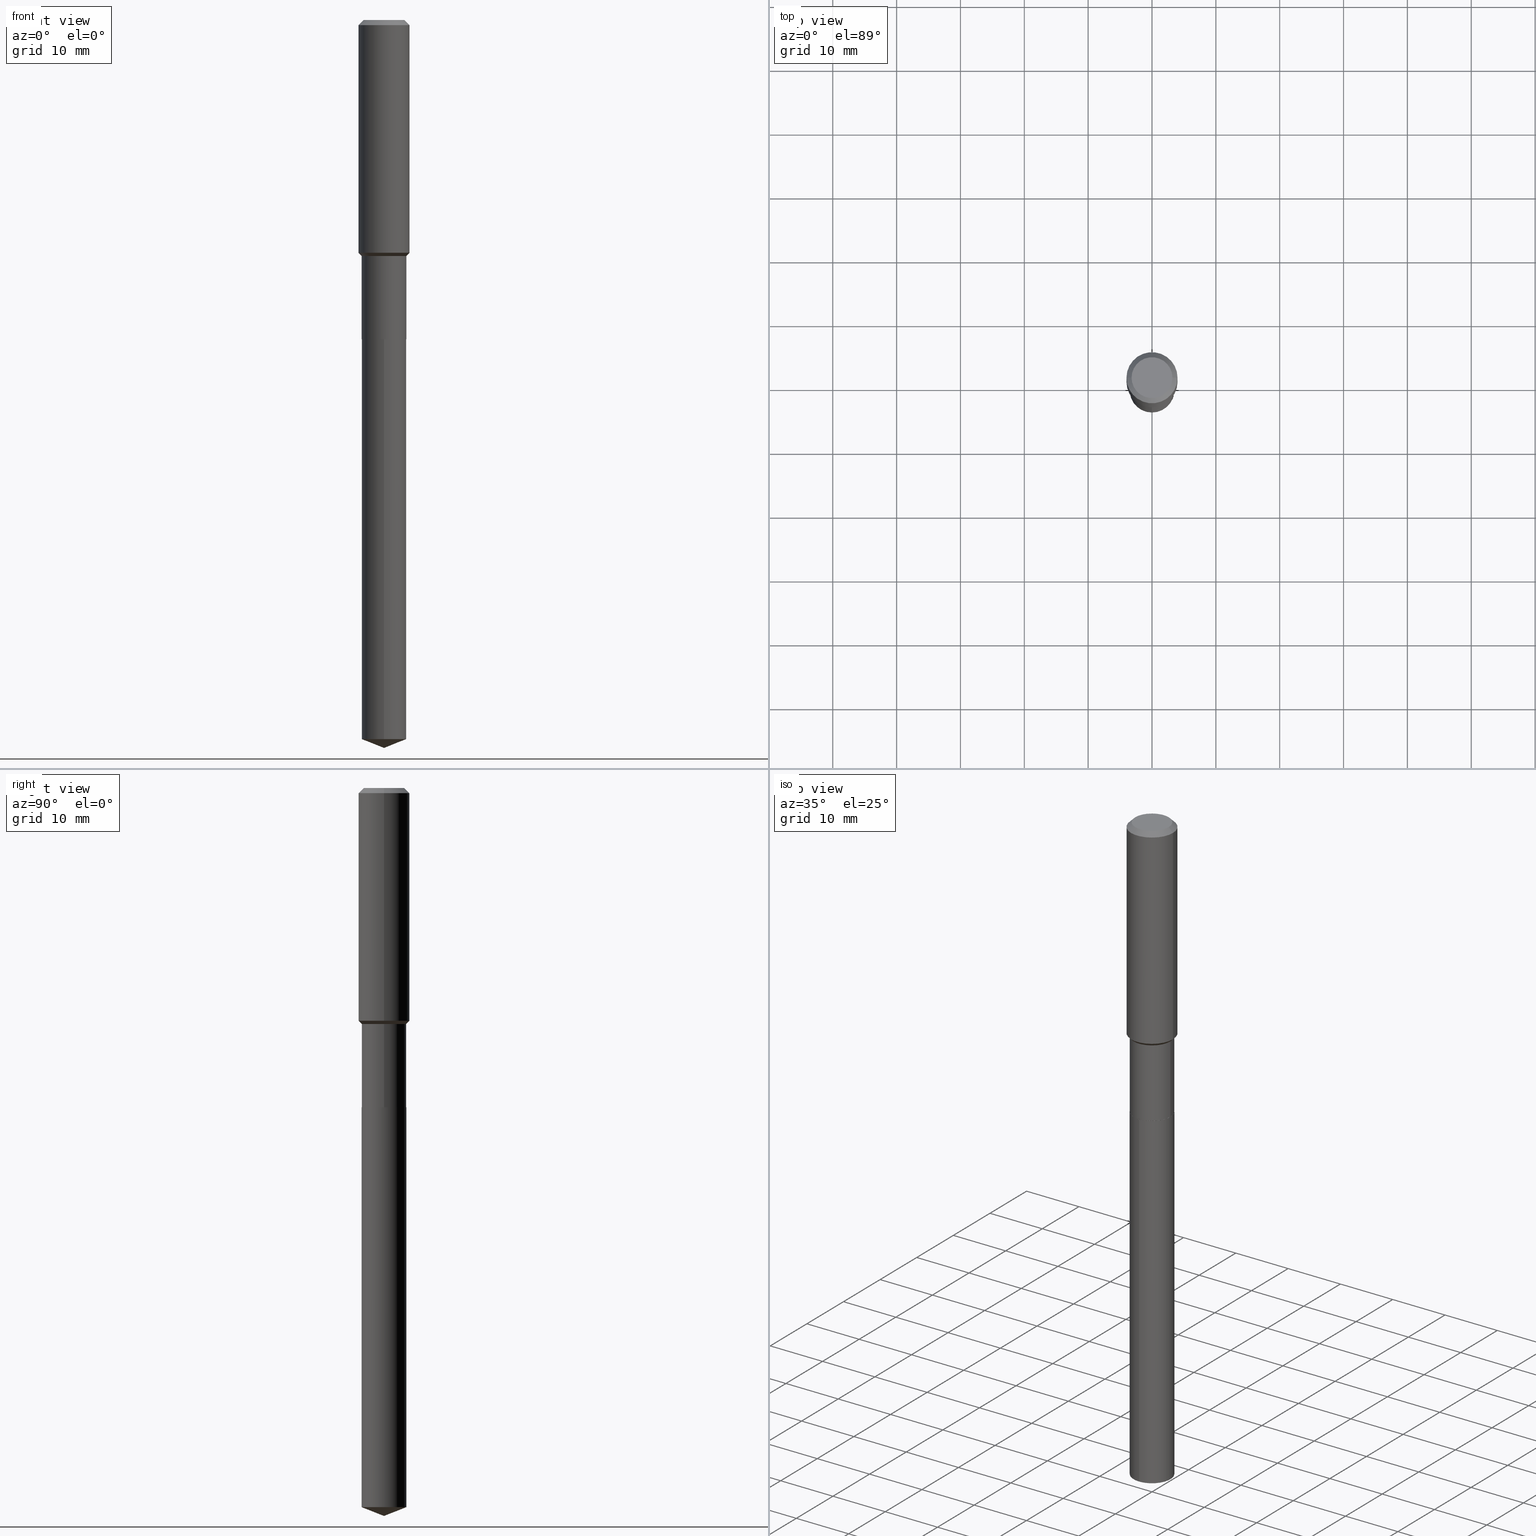
[diagram: canonical four-view strip — front | top / right | iso, engineering-drawing reading convention]
A machine part, canonical four-view strip (front | top / right | iso — engineering-drawing reading convention). The complete STEP part file that produces these views, byte-faithful:
ISO-10303-21;
HEADER;
FILE_DESCRIPTION (( 'STEP AP203' ),
    '1' );
FILE_NAME ('66646.STEP',
    '2024-04-25T02:46:18',
    ( '' ),
    ( '' ),
    'SwSTEP 2.0',
    'SolidWorks 2023',
    '' );
FILE_SCHEMA (( 'CONFIG_CONTROL_DESIGN' ));
ENDSEC;

DATA;
#1 = CARTESIAN_POINT ( 'NONE',  ( -0.1575000000000000011, 9.898349595620272334E-16, -0.03150000000000019451 ) ) ;
#2 = CARTESIAN_POINT ( 'NONE',  ( 0.1373000000000000054, -7.831741791159056177E-15, -1.968500000000000139 ) ) ;
#3 = AXIS2_PLACEMENT_3D ( 'NONE', #112, #37, #189 ) ;
#4 = EDGE_CURVE ( 'NONE', #398, #346, #222, .T. ) ;
#5 = CARTESIAN_POINT ( 'NONE',  ( -9.439721640706201686E-47, 1.347742071746726764E-32, 3.860086710912459732E-18 ) ) ;
#6 = CARTESIAN_POINT ( 'NONE',  ( 1.059404549109931292E-28, -1.621709356054687186E-14, -4.488199999999999079 ) ) ;
#7 = DIRECTION ( 'NONE',  ( -2.445468806185136877E-29, 3.491481338843145188E-15, 1.000000000000000000 ) ) ;
#8 = EDGE_LOOP ( 'NONE', ( #483, #25 ) ) ;
#9 = FACE_OUTER_BOUND ( 'NONE', #285, .T. ) ;
#10 = CLOSED_SHELL ( 'NONE', ( #174, #262, #50, #195, #380 ) ) ;
#11 = AXIS2_PLACEMENT_3D ( 'NONE', #225, #266, #454 ) ;
#12 = ORIENTED_EDGE ( 'NONE', *, *, #402, .F. ) ;
#13 = CARTESIAN_POINT ( 'NONE',  ( 4.813905344975441835E-29, -6.872981015512731707E-15, -1.968500000000000139 ) ) ;
#14 = ADVANCED_FACE ( 'NONE', ( #183 ), #400, .T. ) ;
#15 = ORIENTED_EDGE ( 'NONE', *, *, #209, .T. ) ;
#16 = DIRECTION ( 'NONE',  ( 1.000000000000000000, -6.982962677686268288E-15, 0.000000000000000000 ) ) ;
#17 = ORIENTED_EDGE ( 'NONE', *, *, #163, .T. ) ;
#18 =( LENGTH_UNIT ( ) NAMED_UNIT ( * ) SI_UNIT ( $, .METRE. ) );
#19 = AXIS2_PLACEMENT_3D ( 'NONE', #249, #481, #322 ) ;
#20 = ORIENTED_EDGE ( 'NONE', *, *, #325, .T. ) ;
#21 = EDGE_CURVE ( 'NONE', #459, #128, #175, .T. ) ;
#22 = DIRECTION ( 'NONE',  ( 1.000000000000000000, -6.982962677686265922E-15, 4.876281427513067258E-29 ) ) ;
#23 = CARTESIAN_POINT ( 'NONE',  ( 3.557668019238137054E-29, -5.079407051749007943E-15, -1.454800000000000093 ) ) ;
#24 = CARTESIAN_POINT ( 'NONE',  ( 4.812682610572349594E-29, -6.871235274843310993E-15, -1.968000000000000194 ) ) ;
#25 = ORIENTED_EDGE ( 'NONE', *, *, #35, .T. ) ;
#26 = DATE_AND_TIME ( #362, #115 ) ;
#27 = AXIS2_PLACEMENT_3D ( 'NONE', #79, #417, #196 ) ;
#28 = CONICAL_SURFACE ( 'NONE', #165, 0.1575000000000000011, 0.7853981633974449483 ) ;
#29 = DIRECTION ( 'NONE',  ( 1.000000000000000000, 0.000000000000000000, 0.000000000000000000 ) ) ;
#30 = ADVANCED_FACE ( 'NONE', ( #63 ), #216, .F. ) ;
#31 = VERTEX_POINT ( 'NONE', #430 ) ;
#32 = COORDINATED_UNIVERSAL_TIME_OFFSET ( 5, 0, .BEHIND. ) ;
#33 = SHAPE_DEFINITION_REPRESENTATION ( #71, #389 ) ;
#34 = AXIS2_PLACEMENT_3D ( 'NONE', #5, #301, #162 ) ;
#35 = EDGE_CURVE ( 'NONE', #103, #136, #286, .T. ) ;
#36 = VECTOR ( 'NONE', #278, 39.37007874015748143 ) ;
#37 = DIRECTION ( 'NONE',  ( 2.445468806185136597E-29, -3.491481338843145583E-15, -1.000000000000000000 ) ) ;
#38 = EDGE_LOOP ( 'NONE', ( #259, #177, #388, #379 ) ) ;
#39 = CARTESIAN_POINT ( 'NONE',  ( 7.703226739483228723E-31, -1.099816621735597661E-16, -0.03150000000000019451 ) ) ;
#40 = EDGE_CURVE ( 'NONE', #202, #128, #361, .T. ) ;
#41 = AXIS2_PLACEMENT_3D ( 'NONE', #342, #263, #373 ) ;
#42 = CARTESIAN_POINT ( 'NONE',  ( -9.622522569851193565E-16, -0.1378000000000068892, -1.968499999999999472 ) ) ;
#43 = AXIS2_PLACEMENT_3D ( 'NONE', #157, #435, #448 ) ;
#44 = CC_DESIGN_SECURITY_CLASSIFICATION ( #135, ( #479 ) ) ;
#45 = LINE ( 'NONE', #164, #69 ) ;
#46 = CARTESIAN_POINT ( 'NONE',  ( 0.1575000000000000844, -1.099816621735587677E-15, 7.679978421878603638E-30 ) ) ;
#47 = VERTEX_POINT ( 'NONE', #304 ) ;
#48 = DIRECTION ( 'NONE',  ( -2.445397477310179660E-29, 3.491583485851871163E-15, 1.000000000000000000 ) ) ;
#49 = ORIENTED_EDGE ( 'NONE', *, *, #35, .F. ) ;
#50 = ADVANCED_FACE ( 'NONE', ( #9 ), #468, .T. ) ;
#51 = PLANE ( 'NONE',  #365 ) ;
#52 = LINE ( 'NONE', #237, #287 ) ;
#53 = CIRCLE ( 'NONE', #442, 0.1378000000000000058 ) ;
#54 = VERTEX_POINT ( 'NONE', #229 ) ;
#55 = CARTESIAN_POINT ( 'NONE',  ( -0.1373000000000000054, -5.897405839314114311E-15, -1.968500000000000139 ) ) ;
#56 = ORIENTED_EDGE ( 'NONE', *, *, #465, .T. ) ;
#57 = CARTESIAN_POINT ( 'NONE',  ( 0.1377999999999999503, -6.041659308734175420E-15, -1.454800000000000093 ) ) ;
#58 = CC_DESIGN_PERSON_AND_ORGANIZATION_ASSIGNMENT ( #248, #156, ( #336 ) ) ;
#59 = VERTEX_POINT ( 'NONE', #341 ) ;
#60 = ORIENTED_EDGE ( 'NONE', *, *, #72, .T. ) ;
#61 = CIRCLE ( 'NONE', #188, 0.1378000000000000058 ) ;
#62 = CARTESIAN_POINT ( 'NONE',  ( 3.557668019238137054E-29, -5.079407051749007943E-15, -1.454800000000000093 ) ) ;
#63 = FACE_OUTER_BOUND ( 'NONE', #393, .T. ) ;
#64 = MECHANICAL_CONTEXT ( 'NONE', #345, 'mechanical' ) ;
#65 = PERSON_AND_ORGANIZATION_ROLE ( 'classification_officer' ) ;
#66 = EDGE_CURVE ( 'NONE', #391, #47, #166, .T. ) ;
#67 = CARTESIAN_POINT ( 'NONE',  ( 4.813905344975441835E-29, -6.872981015512731707E-15, -1.968500000000000139 ) ) ;
#68 = ORIENTED_EDGE ( 'NONE', *, *, #110, .T. ) ;
#69 = VECTOR ( 'NONE', #83, 39.37007874015748143 ) ;
#70 = UNCERTAINTY_MEASURE_WITH_UNIT (LENGTH_MEASURE( 1.000000000000000082E-05 ), #96, 'distance_accuracy_value', 'NONE');
#71 = PRODUCT_DEFINITION_SHAPE ( 'NONE', 'NONE',  #369 ) ;
#72 = EDGE_CURVE ( 'NONE', #47, #398, #161, .T. ) ;
#73 = APPROVAL_STATUS ( 'not_yet_approved' ) ;
#74 = CARTESIAN_POINT ( 'NONE',  ( 1.136379234426400663E-28, -1.512435428908050663E-14, -4.488199999999999079 ) ) ;
#75 = AXIS2_PLACEMENT_3D ( 'NONE', #367, #179, #211 ) ;
#76 = CIRCLE ( 'NONE', #160, 0.1575000000000001676 ) ;
#77 = ORIENTED_EDGE ( 'NONE', *, *, #104, .F. ) ;
#78 = DIRECTION ( 'NONE',  ( -2.445468806185136597E-29, 3.491481338843145583E-15, 1.000000000000000000 ) ) ;
#79 = CARTESIAN_POINT ( 'NONE',  ( -8.529991786413033970E-28, 1.217931928410080037E-13, 34.88187874015748235 ) ) ;
#80 = VECTOR ( 'NONE', #158, 39.37007874015748143 ) ;
#81 = CARTESIAN_POINT ( 'NONE',  ( -0.1377999999999999503, -4.100279161871590437E-15, -1.454800000000000093 ) ) ;
#82 = EDGE_LOOP ( 'NONE', ( #241, #171, #272 ) ) ;
#83 = DIRECTION ( 'NONE',  ( -2.445468806185136877E-29, 3.491481338843145188E-15, 1.000000000000000000 ) ) ;
#84 = ORIENTED_EDGE ( 'NONE', *, *, #214, .T. ) ;
#85 = DIRECTION ( 'NONE',  ( -2.445397477310179660E-29, 3.491583485851871163E-15, 1.000000000000000000 ) ) ;
#86 = DIRECTION ( 'NONE',  ( 1.000000000000000000, -6.982962677686268288E-15, 0.000000000000000000 ) ) ;
#87 = DESIGN_CONTEXT ( 'detailed design', #356, 'design' ) ;
#88 = ORIENTED_EDGE ( 'NONE', *, *, #21, .F. ) ;
#89 = CARTESIAN_POINT ( 'NONE',  ( 0.000000000000000000, 0.000000000000000000, 0.000000000000000000 ) ) ;
#90 = DIRECTION ( 'NONE',  ( 1.000000000000000000, -6.982962677686267499E-15, 4.876176775795935793E-29 ) ) ;
#91 = CIRCLE ( 'NONE', #424, 0.1575000000000000011 ) ;
#92 = ORGANIZATION ( 'UNSPECIFIED', 'UNSPECIFIED', '' ) ;
#93 = LOCAL_TIME ( 22, 46, 18.00000000000000000, #256 ) ;
#94 = ORIENTED_EDGE ( 'NONE', *, *, #132, .T. ) ;
#95 = CARTESIAN_POINT ( 'NONE',  ( -0.1575000000000001676, -3.891520060551639155E-15, -1.435100000000000042 ) ) ;
#96 =( CONVERSION_BASED_UNIT ( 'INCH', #429 ) LENGTH_UNIT ( ) NAMED_UNIT ( #404 ) );
#97 = VERTEX_POINT ( 'NONE', #461 ) ;
#98 = CARTESIAN_POINT ( 'NONE',  ( 3.509492283756289196E-29, -5.010624869373797547E-15, -1.435100000000000042 ) ) ;
#99 = AXIS2_PLACEMENT_3D ( 'NONE', #411, #48, #384 ) ;
#100 = ORIENTED_EDGE ( 'NONE', *, *, #132, .F. ) ;
#101 = CIRCLE ( 'NONE', #377, 0.1378000000000000058 ) ;
#102 =( NAMED_UNIT ( * ) SI_UNIT ( $, .STERADIAN. ) SOLID_ANGLE_UNIT ( ) );
#103 = VERTEX_POINT ( 'NONE', #126 ) ;
#104 = EDGE_CURVE ( 'NONE', #269, #474, #300, .T. ) ;
#105 = PERSON_AND_ORGANIZATION ( #250, #92 ) ;
#106 = EDGE_LOOP ( 'NONE', ( #326, #464, #60, #276 ) ) ;
#107 = DATE_AND_TIME ( #291, #358 ) ;
#108 = AXIS2_PLACEMENT_3D ( 'NONE', #457, #265, #22 ) ;
#109 = PERSON_AND_ORGANIZATION ( #250, #92 ) ;
#110 = EDGE_CURVE ( 'NONE', #59, #54, #244, .T. ) ;
#111 = CYLINDRICAL_SURFACE ( 'NONE', #43, 0.1377999999999999781 ) ;
#112 = CARTESIAN_POINT ( 'NONE',  ( 7.703226739483228723E-31, -1.099816621735597661E-16, -0.03150000000000019451 ) ) ;
#113 = ORIENTED_EDGE ( 'NONE', *, *, #123, .T. ) ;
#114 = LINE ( 'NONE', #74, #260 ) ;
#115 = LOCAL_TIME ( 22, 46, 18.00000000000000000, #251 ) ;
#116 = DIRECTION ( 'NONE',  ( 0.7071067811865502373, -2.468850131082285065E-15, 0.7071067811865447972 ) ) ;
#117 = CYLINDRICAL_SURFACE ( 'NONE', #11, 0.1378000000000000058 ) ;
#118 = CC_DESIGN_PERSON_AND_ORGANIZATION_ASSIGNMENT ( #105, #437, ( #369 ) ) ;
#119 = CARTESIAN_POINT ( 'NONE',  ( 1.097543295766354916E-28, -1.567092500120036717E-14, -4.488199999999999967 ) ) ;
#120 = EDGE_LOOP ( 'NONE', ( #206, #56, #20, #100 ) ) ;
#121 = VECTOR ( 'NONE', #421, 39.37007874015748143 ) ;
#122 = DIRECTION ( 'NONE',  ( -0.7071067811865502373, 7.493145998870363626E-15, 0.7071067811865447972 ) ) ;
#123 = EDGE_CURVE ( 'NONE', #398, #269, #270, .T. ) ;
#124 = ORIENTED_EDGE ( 'NONE', *, *, #258, .F. ) ;
#125 = CARTESIAN_POINT ( 'NONE',  ( 9.791278898775265658E-16, 0.1377999999999845182, -4.433919136460261257 ) ) ;
#126 = CARTESIAN_POINT ( 'NONE',  ( 9.791278898775271575E-16, 0.1377999999999931502, -1.968500000000000583 ) ) ;
#127 = CC_DESIGN_PERSON_AND_ORGANIZATION_ASSIGNMENT ( #109, #65, ( #135 ) ) ;
#128 = VERTEX_POINT ( 'NONE', #337 ) ;
#129 = LINE ( 'NONE', #55, #121 ) ;
#130 = CYLINDRICAL_SURFACE ( 'NONE', #469, 0.1377999999999999781 ) ;
#131 = ORIENTED_EDGE ( 'NONE', *, *, #40, .T. ) ;
#132 = EDGE_CURVE ( 'NONE', #31, #447, #91, .T. ) ;
#133 = CARTESIAN_POINT ( 'NONE',  ( -9.622522569851193565E-16, -0.1378000000000068892, -1.968499999999999250 ) ) ;
#134 = VECTOR ( 'NONE', #122, 39.37007874015748143 ) ;
#135 = SECURITY_CLASSIFICATION ( '', '', #141 ) ;
#136 = VERTEX_POINT ( 'NONE', #42 ) ;
#137 = LINE ( 'NONE', #133, #36 ) ;
#138 = DIRECTION ( 'NONE',  ( 1.000000000000000000, -6.982962677686268288E-15, 0.000000000000000000 ) ) ;
#139 = DIRECTION ( 'NONE',  ( 2.445397477310179380E-29, -3.491583485851871163E-15, -1.000000000000000000 ) ) ;
#140 = EDGE_LOOP ( 'NONE', ( #385, #327, #290, #343 ) ) ;
#141 = SECURITY_CLASSIFICATION_LEVEL ( 'unclassified' ) ;
#142 = CIRCLE ( 'NONE', #152, 0.1377999999999999503 ) ;
#143 = EDGE_CURVE ( 'NONE', #346, #398, #142, .T. ) ;
#144 = DIRECTION ( 'NONE',  ( 2.438088387897960049E-29, -3.491481338843145188E-15, -1.000000000000000000 ) ) ;
#145 = APPROVAL_STATUS ( 'not_yet_approved' ) ;
#146 = DIRECTION ( 'NONE',  ( -2.445468806185136597E-29, 3.491481338843145583E-15, 1.000000000000000000 ) ) ;
#147 = CARTESIAN_POINT ( 'NONE',  ( -4.719860820353100843E-47, 6.738710358733633822E-33, 1.930043355456229866E-18 ) ) ;
#148 = APPLICATION_PROTOCOL_DEFINITION ( 'international standard', 'config_control_design', 1994, #345 ) ;
#149 = DIRECTION ( 'NONE',  ( -2.445397477310179660E-29, 3.491583485851871163E-15, 1.000000000000000000 ) ) ;
#150 = DIRECTION ( 'NONE',  ( -2.445468806185136597E-29, 3.491481338843145583E-15, 1.000000000000000000 ) ) ;
#151 =( NAMED_UNIT ( * ) PLANE_ANGLE_UNIT ( ) SI_UNIT ( $, .RADIAN. ) );
#152 = AXIS2_PLACEMENT_3D ( 'NONE', #190, #420, #86 ) ;
#153 = AXIS2_PLACEMENT_3D ( 'NONE', #24, #387, #319 ) ;
#154 = MANIFOLD_SOLID_BREP ( 'Body-Move/Copy2[1]', #10 ) ;
#155 = LOCAL_TIME ( 22, 46, 18.00000000000000000, #32 ) ;
#156 = PERSON_AND_ORGANIZATION_ROLE ( 'design_owner' ) ;
#157 = CARTESIAN_POINT ( 'NONE',  ( 0.000000000000000000, 0.000000000000000000, 0.000000000000000000 ) ) ;
#158 = DIRECTION ( 'NONE',  ( -2.445468806185136877E-29, 3.491481338843145188E-15, 1.000000000000000000 ) ) ;
#159 = CARTESIAN_POINT ( 'NONE',  ( -0.1373000000000000054, -5.894756612140003899E-15, -1.968500000000000139 ) ) ;
#160 = AXIS2_PLACEMENT_3D ( 'NONE', #98, #203, #427 ) ;
#161 = LINE ( 'NONE', #309, #80 ) ;
#162 = DIRECTION ( 'NONE',  ( 1.000000000000000000, -6.982962677686265922E-15, 4.876281427513067258E-29 ) ) ;
#163 = EDGE_CURVE ( 'NONE', #54, #31, #224, .T. ) ;
#164 = CARTESIAN_POINT ( 'NONE',  ( -0.1377999999999999781, 9.791278898774179003E-16, -6.778292554371258633E-30 ) ) ;
#165 = AXIS2_PLACEMENT_3D ( 'NONE', #353, #210, #419 ) ;
#166 = LINE ( 'NONE', #2, #440 ) ;
#167 = CC_DESIGN_APPROVAL ( #240, ( #479 ) ) ;
#168 = DIRECTION ( 'NONE',  ( -2.445468806185136597E-29, 3.491481338843145583E-15, 1.000000000000000000 ) ) ;
#169 = ORIENTED_EDGE ( 'NONE', *, *, #104, .T. ) ;
#170 = DIRECTION ( 'NONE',  ( -2.445397477310179380E-29, 3.491583485851871163E-15, 1.000000000000000000 ) ) ;
#171 = ORIENTED_EDGE ( 'NONE', *, *, #242, .T. ) ;
#172 = DIRECTION ( 'NONE',  ( -2.445397477310179660E-29, 3.491583485851871163E-15, 1.000000000000000000 ) ) ;
#173 = ORIENTED_EDGE ( 'NONE', *, *, #209, .F. ) ;
#174 = ADVANCED_FACE ( 'NONE', ( #302 ), #233, .T. ) ;
#175 = CIRCLE ( 'NONE', #19, 0.1378000000000000058 ) ;
#176 = AXIS2_PLACEMENT_3D ( 'NONE', #23, #408, #138 ) ;
#177 = ORIENTED_EDGE ( 'NONE', *, *, #432, .T. ) ;
#178 = DIRECTION ( 'NONE',  ( -2.445468806185136597E-29, 3.491481338843145583E-15, 1.000000000000000000 ) ) ;
#179 = DIRECTION ( 'NONE',  ( -2.445397477310179660E-29, 3.491583485851871163E-15, 1.000000000000000000 ) ) ;
#180 = APPROVAL_ROLE ( '' ) ;
#181 = DIRECTION ( 'NONE',  ( 1.000000000000000000, -6.982962677686268288E-15, 0.000000000000000000 ) ) ;
#182 = DIRECTION ( 'NONE',  ( -6.982962677686265922E-15, -1.000000000000000000, 3.498627837350024338E-15 ) ) ;
#183 = FACE_OUTER_BOUND ( 'NONE', #318, .T. ) ;
#184 = AXIS2_PLACEMENT_3D ( 'NONE', #39, #455, #338 ) ;
#185 = CARTESIAN_POINT ( 'NONE',  ( 4.813905344975441835E-29, -6.872981015512731707E-15, -1.968500000000000139 ) ) ;
#186 = EDGE_CURVE ( 'NONE', #59, #447, #299, .T. ) ;
#187 = COORDINATED_UNIVERSAL_TIME_OFFSET ( 5, 0, .BEHIND. ) ;
#188 = AXIS2_PLACEMENT_3D ( 'NONE', #207, #350, #205 ) ;
#189 = DIRECTION ( 'NONE',  ( -1.000000000000000000, 6.982962677686265922E-15, 0.000000000000000000 ) ) ;
#190 = CARTESIAN_POINT ( 'NONE',  ( 3.557668019238137054E-29, -5.079407051749007943E-15, -1.454800000000000093 ) ) ;
#191 = EDGE_CURVE ( 'NONE', #447, #31, #425, .T. ) ;
#192 = CONICAL_SURFACE ( 'NONE', #255, 0.1373000000000000054, 0.7853981633975678500 ) ;
#193 = APPROVAL_PERSON_ORGANIZATION ( #399, #334, #180 ) ;
#194 = CARTESIAN_POINT ( 'NONE',  ( 7.703226739483228723E-31, -1.099816621735597661E-16, -0.03150000000000019451 ) ) ;
#195 = ADVANCED_FACE ( 'NONE', ( #453 ), #117, .T. ) ;
#196 = DIRECTION ( 'NONE',  ( -6.982962677686265922E-15, -1.000000000000000000, 3.498627837350024338E-15 ) ) ;
#197 = ORIENTED_EDGE ( 'NONE', *, *, #186, .T. ) ;
#198 = APPROVAL ( #394, 'UNSPECIFIED' ) ;
#199 = EDGE_LOOP ( 'NONE', ( #428, #253, #314, #12 ) ) ;
#200 = DIRECTION ( 'NONE',  ( 1.000000000000000000, -6.982962677686267499E-15, 4.876176775795936353E-29 ) ) ;
#201 = AXIS2_PLACEMENT_3D ( 'NONE', #252, #371, #333 ) ;
#202 = VERTEX_POINT ( 'NONE', #119 ) ;
#203 = DIRECTION ( 'NONE',  ( -2.445468806185136597E-29, 3.491481338843145583E-15, 1.000000000000000000 ) ) ;
#204 = ORIENTED_EDGE ( 'NONE', *, *, #242, .F. ) ;
#205 = DIRECTION ( 'NONE',  ( 1.000000000000000000, -6.982962677686265922E-15, 0.000000000000000000 ) ) ;
#206 = ORIENTED_EDGE ( 'NONE', *, *, #226, .F. ) ;
#207 = CARTESIAN_POINT ( 'NONE',  ( 4.812682610572349594E-29, -6.871235274843310993E-15, -1.968000000000000194 ) ) ;
#208 = VECTOR ( 'NONE', #170, 39.37007874015748143 ) ;
#209 = EDGE_CURVE ( 'NONE', #346, #474, #413, .T. ) ;
#210 = DIRECTION ( 'NONE',  ( 2.445468806185136597E-29, -3.491481338843145583E-15, -1.000000000000000000 ) ) ;
#211 = DIRECTION ( 'NONE',  ( -6.982962677686265922E-15, -1.000000000000000000, 3.964946289788480896E-15 ) ) ;
#212 = CALENDAR_DATE ( 2024, 24, 4 ) ;
#213 = ORIENTED_EDGE ( 'NONE', *, *, #110, .F. ) ;
#214 = EDGE_CURVE ( 'NONE', #97, #346, #45, .T. ) ;
#215 = FACE_OUTER_BOUND ( 'NONE', #140, .T. ) ;
#216 = PLANE ( 'NONE',  #456 ) ;
#217 = CONICAL_SURFACE ( 'NONE', #3, 0.1575000000000000011, 0.7853981633974449483 ) ;
#218 = CC_DESIGN_APPROVAL ( #334, ( #369 ) ) ;
#219 = CARTESIAN_POINT ( 'NONE',  ( -8.529991786413033970E-28, 1.217931928410080037E-13, 34.88187874015748235 ) ) ;
#220 = CALENDAR_DATE ( 2024, 24, 4 ) ;
#221 = FACE_OUTER_BOUND ( 'NONE', #423, .T. ) ;
#222 = CIRCLE ( 'NONE', #176, 0.1377999999999999503 ) ;
#223 = ADVANCED_FACE ( 'NONE', ( #231 ), #130, .T. ) ;
#224 = LINE ( 'NONE', #1, #407 ) ;
#225 = CARTESIAN_POINT ( 'NONE',  ( 4.813905344975440714E-29, -6.872981015512730918E-15, -1.968499999999999694 ) ) ;
#226 = EDGE_CURVE ( 'NONE', #474, #31, #52, .T. ) ;
#227 = CIRCLE ( 'NONE', #201, 0.1373000000000000054 ) ;
#228 = AXIS2_PLACEMENT_3D ( 'NONE', #62, #178, #16 ) ;
#229 = CARTESIAN_POINT ( 'NONE',  ( -0.1260000000000000009, 9.348441284752484904E-16, 3.860086710906114178E-18 ) ) ;
#230 = ORIENTED_EDGE ( 'NONE', *, *, #402, .T. ) ;
#231 = FACE_OUTER_BOUND ( 'NONE', #106, .T. ) ;
#232 = ORIENTED_EDGE ( 'NONE', *, *, #4, .T. ) ;
#233 = CYLINDRICAL_SURFACE ( 'NONE', #99, 0.1378000000000000058 ) ;
#234 = ADVANCED_FACE ( 'NONE', ( #406 ), #111, .T. ) ;
#235 = LINE ( 'NONE', #316, #208 ) ;
#236 = AXIS2_PLACEMENT_3D ( 'NONE', #219, #149, #182 ) ;
#237 = CARTESIAN_POINT ( 'NONE',  ( -0.1575000000000000844, 1.119104808822158392E-15, -7.747322767151481189E-30 ) ) ;
#238 = ORIENTED_EDGE ( 'NONE', *, *, #191, .F. ) ;
#239 = CYLINDRICAL_SURFACE ( 'NONE', #488, 0.1575000000000000844 ) ;
#240 = APPROVAL ( #145, 'UNSPECIFIED' ) ;
#241 = ORIENTED_EDGE ( 'NONE', *, *, #40, .F. ) ;
#242 = EDGE_CURVE ( 'NONE', #202, #459, #114, .T. ) ;
#243 = DIRECTION ( 'NONE',  ( -6.982962677686265922E-15, -1.000000000000000000, 3.964946289788480896E-15 ) ) ;
#244 = CIRCLE ( 'NONE', #34, 0.1260000000000000009 ) ;
#245 = CIRCLE ( 'NONE', #108, 0.1260000000000000009 ) ;
#246 = EDGE_LOOP ( 'NONE', ( #462, #436, #17, #94 ) ) ;
#247 = PRODUCT_RELATED_PRODUCT_CATEGORY ( 'detail', '', ( #336 ) ) ;
#248 = PERSON_AND_ORGANIZATION ( #250, #92 ) ;
#249 = CARTESIAN_POINT ( 'NONE',  ( 1.084283508178760596E-28, -1.548119775808055903E-14, -4.433919136460261257 ) ) ;
#250 = PERSON ( 'UNSPECIFIED', 'UNSPECIFIED', 'UNSPECIFIED', ('UNSPECIFIED'), ('UNSPECIFIED'), ('UNSPECIFIED') ) ;
#251 = COORDINATED_UNIVERSAL_TIME_OFFSET ( 5, 0, .BEHIND. ) ;
#252 = CARTESIAN_POINT ( 'NONE',  ( 4.813905344975441835E-29, -6.872981015512731707E-15, -1.968500000000000139 ) ) ;
#253 = ORIENTED_EDGE ( 'NONE', *, *, #344, .T. ) ;
#254 = DIRECTION ( 'NONE',  ( 0.000000000000000000, 0.000000000000000000, 1.000000000000000000 ) ) ;
#255 = AXIS2_PLACEMENT_3D ( 'NONE', #185, #330, #439 ) ;
#256 = COORDINATED_UNIVERSAL_TIME_OFFSET ( 5, 0, .BEHIND. ) ;
#257 = PERSON_AND_ORGANIZATION ( #250, #92 ) ;
#258 = EDGE_CURVE ( 'NONE', #312, #391, #227, .T. ) ;
#259 = ORIENTED_EDGE ( 'NONE', *, *, #295, .T. ) ;
#260 = VECTOR ( 'NONE', #298, 39.37007874015748143 ) ;
#261 = DIRECTION ( 'NONE',  ( 0.7071067811865451302, -7.319954787623248157E-15, -0.7071067811865499042 ) ) ;
#262 = ADVANCED_FACE ( 'NONE', ( #296 ), #458, .T. ) ;
#263 = DIRECTION ( 'NONE',  ( -2.445468806185136597E-29, 3.491481338843145583E-15, 1.000000000000000000 ) ) ;
#264 = FACE_OUTER_BOUND ( 'NONE', #38, .T. ) ;
#265 = DIRECTION ( 'NONE',  ( -2.445468806185136597E-29, 3.491481338843145583E-15, 1.000000000000000000 ) ) ;
#266 = DIRECTION ( 'NONE',  ( -2.445397477310179660E-29, 3.491583485851871163E-15, 1.000000000000000000 ) ) ;
#267 = EDGE_LOOP ( 'NONE', ( #418, #124 ) ) ;
#268 = DIRECTION ( 'NONE',  ( -6.497071151882115103E-15, -0.9304175679820237965, 0.3665012267242989119 ) ) ;
#269 = VERTEX_POINT ( 'NONE', #480 ) ;
#270 = LINE ( 'NONE', #375, #347 ) ;
#271 = DIRECTION ( 'NONE',  ( 1.000000000000000000, -6.982962677686262766E-15, 0.000000000000000000 ) ) ;
#272 = ORIENTED_EDGE ( 'NONE', *, *, #414, .F. ) ;
#273 = ADVANCED_FACE ( 'NONE', ( #221 ), #446, .T. ) ;
#274 = FACE_OUTER_BOUND ( 'NONE', #267, .T. ) ;
#275 = DIRECTION ( 'NONE',  ( -2.445468806185136597E-29, 3.491481338843145583E-15, 1.000000000000000000 ) ) ;
#276 = ORIENTED_EDGE ( 'NONE', *, *, #143, .F. ) ;
#277 = CC_DESIGN_DATE_AND_TIME_ASSIGNMENT ( #331, #396, ( #135 ) ) ;
#278 = DIRECTION ( 'NONE',  ( -2.445397477310179380E-29, 3.491583485851871163E-15, 1.000000000000000000 ) ) ;
#279 = CONICAL_SURFACE ( 'NONE', #317, 0.1373000000000000054, 0.7853981633975678500 ) ;
#280 = ORIENTED_EDGE ( 'NONE', *, *, #325, .F. ) ;
#281 = CARTESIAN_POINT ( 'NONE',  ( 0.1575000000000000011, -1.209798283909146741E-15, -0.03150000000000019451 ) ) ;
#282 = ADVANCED_FACE ( 'NONE', ( #292 ), #217, .T. ) ;
#283 = CARTESIAN_POINT ( 'NONE',  ( 3.557668019238137054E-29, -5.079407051749007943E-15, -1.454800000000000093 ) ) ;
#284 = FACE_OUTER_BOUND ( 'NONE', #476, .T. ) ;
#285 = EDGE_LOOP ( 'NONE', ( #204, #131, #88 ) ) ;
#286 = CIRCLE ( 'NONE', #75, 0.1378000000000000058 ) ;
#287 = VECTOR ( 'NONE', #348, 39.37007874015748143 ) ;
#288 = ORIENTED_EDGE ( 'NONE', *, *, #332, .T. ) ;
#289 = PERSON_AND_ORGANIZATION_ROLE ( 'design_supplier' ) ;
#290 = ORIENTED_EDGE ( 'NONE', *, *, #66, .T. ) ;
#291 = CALENDAR_DATE ( 2024, 24, 4 ) ;
#292 = FACE_OUTER_BOUND ( 'NONE', #246, .T. ) ;
#293 = DATE_AND_TIME ( #445, #155 ) ;
#294 = APPROVAL_PERSON_ORGANIZATION ( #364, #198, #487 ) ;
#295 = EDGE_CURVE ( 'NONE', #391, #312, #355, .T. ) ;
#296 = FACE_OUTER_BOUND ( 'NONE', #82, .T. ) ;
#297 = ORIENTED_EDGE ( 'NONE', *, *, #4, .F. ) ;
#298 = DIRECTION ( 'NONE',  ( 6.611014441532061856E-15, 0.9304175679820264611, 0.3665012267242923616 ) ) ;
#299 = LINE ( 'NONE', #451, #306 ) ;
#300 = CIRCLE ( 'NONE', #41, 0.1575000000000001676 ) ;
#301 = DIRECTION ( 'NONE',  ( -2.445468806185136597E-29, 3.491481338843145583E-15, 1.000000000000000000 ) ) ;
#302 = FACE_OUTER_BOUND ( 'NONE', #199, .T. ) ;
#303 = CARTESIAN_POINT ( 'NONE',  ( 4.813905344975441835E-29, -6.872981015512731707E-15, -1.968500000000000139 ) ) ;
#304 = CARTESIAN_POINT ( 'NONE',  ( 0.1378000000000000058, -7.833487531828478470E-15, -1.968000000000000194 ) ) ;
#305 = ORIENTED_EDGE ( 'NONE', *, *, #191, .T. ) ;
#306 = VECTOR ( 'NONE', #261, 39.37007874015748143 ) ;
#307 = CIRCLE ( 'NONE', #153, 0.1378000000000000058 ) ;
#308 = CARTESIAN_POINT ( 'NONE',  ( -0.1377999999999999503, -4.996193273418741568E-15, -1.454800000000000093 ) ) ;
#309 = CARTESIAN_POINT ( 'NONE',  ( 0.1377999999999999781, -9.622522569851674770E-16, 6.719371597046798536E-30 ) ) ;
#310 = ADVANCED_FACE ( 'NONE', ( #215 ), #192, .T. ) ;
#311 = CARTESIAN_POINT ( 'NONE',  ( -6.561425494807725945E-30, -1.470640093616546304E-14, -1.968499999999999694 ) ) ;
#312 = VERTEX_POINT ( 'NONE', #159 ) ;
#313 = FACE_OUTER_BOUND ( 'NONE', #8, .T. ) ;
#314 = ORIENTED_EDGE ( 'NONE', *, *, #351, .F. ) ;
#315 = ADVANCED_FACE ( 'NONE', ( #264 ), #279, .T. ) ;
#316 = CARTESIAN_POINT ( 'NONE',  ( 9.791278898774662180E-16, 0.1377999999999931224, -1.968500000000000361 ) ) ;
#317 = AXIS2_PLACEMENT_3D ( 'NONE', #303, #168, #271 ) ;
#318 = EDGE_LOOP ( 'NONE', ( #232, #15, #77, #382 ) ) ;
#319 = DIRECTION ( 'NONE',  ( 1.000000000000000000, -6.982962677686265922E-15, 0.000000000000000000 ) ) ;
#320 = ORIENTED_EDGE ( 'NONE', *, *, #143, .T. ) ;
#321 = PERSON_AND_ORGANIZATION_ROLE ( 'creator' ) ;
#322 = DIRECTION ( 'NONE',  ( -6.982962677686265922E-15, -1.000000000000000000, 3.964946289788480896E-15 ) ) ;
#323 = APPLICATION_PROTOCOL_DEFINITION ( 'international standard', 'config_control_design', 1994, #356 ) ;
#324 = LOCAL_TIME ( 22, 46, 18.00000000000000000, #187 ) ;
#325 = EDGE_CURVE ( 'NONE', #269, #447, #376, .T. ) ;
#326 = ORIENTED_EDGE ( 'NONE', *, *, #214, .F. ) ;
#327 = ORIENTED_EDGE ( 'NONE', *, *, #258, .T. ) ;
#328 = CC_DESIGN_PERSON_AND_ORGANIZATION_ASSIGNMENT ( #475, #289, ( #479 ) ) ;
#329 = DATE_AND_TIME ( #220, #324 ) ;
#330 = DIRECTION ( 'NONE',  ( -2.445468806185136597E-29, 3.491481338843145583E-15, 1.000000000000000000 ) ) ;
#331 = DATE_AND_TIME ( #212, #93 ) ;
#332 = EDGE_CURVE ( 'NONE', #54, #59, #245, .T. ) ;
#333 = DIRECTION ( 'NONE',  ( 1.000000000000000000, -6.982962677686262766E-15, 0.000000000000000000 ) ) ;
#334 = APPROVAL ( #73, 'UNSPECIFIED' ) ;
#335 = DIRECTION ( 'NONE',  ( -2.445468806185136597E-29, 3.491481338843145583E-15, 1.000000000000000000 ) ) ;
#336 = PRODUCT ( '66646', '66646', '', ( #64 ) ) ;
#337 = CARTESIAN_POINT ( 'NONE',  ( -9.622522569850590086E-16, -0.1378000000000154934, -4.433919136460260368 ) ) ;
#338 = DIRECTION ( 'NONE',  ( 1.000000000000000000, -6.982962677686265922E-15, 0.000000000000000000 ) ) ;
#339 = AXIS2_PLACEMENT_3D ( 'NONE', #283, #150, #181 ) ;
#340 = APPROVAL_PERSON_ORGANIZATION ( #257, #240, #405 ) ;
#341 = CARTESIAN_POINT ( 'NONE',  ( 0.1260000000000000009, -1.027466422270894443E-15, 3.860086710919128072E-18 ) ) ;
#342 = CARTESIAN_POINT ( 'NONE',  ( 3.509492283756289196E-29, -5.010624869373797547E-15, -1.435100000000000042 ) ) ;
#343 = ORIENTED_EDGE ( 'NONE', *, *, #449, .F. ) ;
#344 = EDGE_CURVE ( 'NONE', #459, #103, #235, .T. ) ;
#345 = APPLICATION_CONTEXT ( 'configuration controlled 3d designs of mechanical parts and assemblies' ) ;
#346 = VERTEX_POINT ( 'NONE', #308 ) ;
#347 = VECTOR ( 'NONE', #116, 39.37007874015748143 ) ;
#348 = DIRECTION ( 'NONE',  ( -2.445468806185136877E-29, 3.491481338843145188E-15, 1.000000000000000000 ) ) ;
#349 = ORIENTED_EDGE ( 'NONE', *, *, #21, .T. ) ;
#350 = DIRECTION ( 'NONE',  ( -2.445468806185136597E-29, 3.491481338843145583E-15, 1.000000000000000000 ) ) ;
#351 = EDGE_CURVE ( 'NONE', #136, #103, #101, .T. ) ;
#352 = ORIENTED_EDGE ( 'NONE', *, *, #344, .F. ) ;
#353 = CARTESIAN_POINT ( 'NONE',  ( 7.703226739483228723E-31, -1.099816621735597661E-16, -0.03150000000000019451 ) ) ;
#354 = EDGE_LOOP ( 'NONE', ( #467, #84, #297, #372 ) ) ;
#355 = CIRCLE ( 'NONE', #401, 0.1373000000000000054 ) ;
#356 = APPLICATION_CONTEXT ( 'configuration controlled 3d designs of mechanical parts and assemblies' ) ;
#357 = DIRECTION ( 'NONE',  ( 6.982962677686265922E-15, 1.000000000000000000, -3.491583485851871163E-15 ) ) ;
#358 = LOCAL_TIME ( 22, 46, 18.00000000000000000, #434 ) ;
#359 = EDGE_LOOP ( 'NONE', ( #352, #349, #230, #49 ) ) ;
#360 = DIRECTION ( 'NONE',  ( -2.438088387897960049E-29, 3.491481338843145188E-15, 1.000000000000000000 ) ) ;
#361 = LINE ( 'NONE', #6, #450 ) ;
#362 = CALENDAR_DATE ( 2024, 24, 4 ) ;
#363 = ORIENTED_EDGE ( 'NONE', *, *, #465, .F. ) ;
#364 = PERSON_AND_ORGANIZATION ( #250, #92 ) ;
#365 = AXIS2_PLACEMENT_3D ( 'NONE', #311, #360, #463 ) ;
#366 = CARTESIAN_POINT ( 'NONE',  ( 0.000000000000000000, 0.000000000000000000, 0.000000000000000000 ) ) ;
#367 = CARTESIAN_POINT ( 'NONE',  ( 4.813905344975441835E-29, -6.872981015512731707E-15, -1.968500000000000139 ) ) ;
#368 = DATE_TIME_ROLE ( 'creation_date' ) ;
#369 = PRODUCT_DEFINITION ( 'UNKNOWN', '', #479, #87 ) ;
#370 = APPROVAL_DATE_TIME ( #26, #198 ) ;
#371 = DIRECTION ( 'NONE',  ( -2.445468806185136597E-29, 3.491481338843145583E-15, 1.000000000000000000 ) ) ;
#372 = ORIENTED_EDGE ( 'NONE', *, *, #72, .F. ) ;
#373 = DIRECTION ( 'NONE',  ( 1.000000000000000000, -6.982962677686267499E-15, 0.000000000000000000 ) ) ;
#374 = ADVANCED_FACE ( 'NONE', ( #390 ), #444, .T. ) ;
#375 = CARTESIAN_POINT ( 'NONE',  ( 0.1377999999999999503, -6.041659308734175420E-15, -1.454800000000000093 ) ) ;
#376 = LINE ( 'NONE', #46, #477 ) ;
#377 = AXIS2_PLACEMENT_3D ( 'NONE', #13, #172, #383 ) ;
#378 = DIRECTION ( 'NONE',  ( 0.7071067811866320607, -2.468850131083142557E-15, 0.7071067811864629737 ) ) ;
#379 = ORIENTED_EDGE ( 'NONE', *, *, #66, .F. ) ;
#380 = ADVANCED_FACE ( 'NONE', ( #313 ), #470, .F. ) ;
#381 = DIRECTION ( 'NONE',  ( -0.7071067811865451302, 2.468850131082231817E-15, -0.7071067811865499042 ) ) ;
#382 = ORIENTED_EDGE ( 'NONE', *, *, #123, .F. ) ;
#383 = DIRECTION ( 'NONE',  ( -6.982962677686265922E-15, -1.000000000000000000, 3.964946289788480896E-15 ) ) ;
#384 = DIRECTION ( 'NONE',  ( -6.982962677686265922E-15, -1.000000000000000000, 3.964946289788480896E-15 ) ) ;
#385 = ORIENTED_EDGE ( 'NONE', *, *, #432, .F. ) ;
#386 =( GEOMETRIC_REPRESENTATION_CONTEXT ( 3 ) GLOBAL_UNCERTAINTY_ASSIGNED_CONTEXT ( ( #70 ) ) GLOBAL_UNIT_ASSIGNED_CONTEXT ( ( #96, #151, #102 ) ) REPRESENTATION_CONTEXT ( 'NONE', 'WORKASPACE' ) );
#387 = DIRECTION ( 'NONE',  ( -2.445468806185136597E-29, 3.491481338843145583E-15, 1.000000000000000000 ) ) ;
#388 = ORIENTED_EDGE ( 'NONE', *, *, #426, .F. ) ;
#389 = ADVANCED_BREP_SHAPE_REPRESENTATION ( '66646', ( #154, #472, #452 ), #386 ) ;
#390 = FACE_OUTER_BOUND ( 'NONE', #416, .T. ) ;
#391 = VERTEX_POINT ( 'NONE', #466 ) ;
#392 = CARTESIAN_POINT ( 'NONE',  ( 2.088805287251064525E-29, -1.077547940123704338E-14, -1.968500000000000139 ) ) ;
#393 = EDGE_LOOP ( 'NONE', ( #288, #68 ) ) ;
#394 = APPROVAL_STATUS ( 'not_yet_approved' ) ;
#395 = ORIENTED_EDGE ( 'NONE', *, *, #163, .F. ) ;
#396 = DATE_TIME_ROLE ( 'classification_date' ) ;
#397 = DIRECTION ( 'NONE',  ( 1.000000000000000000, -6.982962677686267499E-15, 4.876176775795936353E-29 ) ) ;
#398 = VERTEX_POINT ( 'NONE', #57 ) ;
#399 = PERSON_AND_ORGANIZATION ( #250, #92 ) ;
#400 = CONICAL_SURFACE ( 'NONE', #339, 0.1377999999999999503, 0.7853981633974521648 ) ;
#401 = AXIS2_PLACEMENT_3D ( 'NONE', #67, #335, #490 ) ;
#402 = EDGE_CURVE ( 'NONE', #128, #136, #137, .T. ) ;
#403 = CC_DESIGN_APPROVAL ( #198, ( #135 ) ) ;
#404 = DIMENSIONAL_EXPONENTS ( 1.000000000000000000, 0.000000000000000000, 0.000000000000000000, 0.000000000000000000, 0.000000000000000000, 0.000000000000000000, 0.000000000000000000 ) ;
#405 = APPROVAL_ROLE ( '' ) ;
#406 = FACE_OUTER_BOUND ( 'NONE', #354, .T. ) ;
#407 = VECTOR ( 'NONE', #381, 39.37007874015748143 ) ;
#408 = DIRECTION ( 'NONE',  ( -2.445468806185136597E-29, 3.491481338843145583E-15, 1.000000000000000000 ) ) ;
#409 = AXIS2_PLACEMENT_3D ( 'NONE', #392, #139, #357 ) ;
#410 = ADVANCED_FACE ( 'NONE', ( #274 ), #51, .F. ) ;
#411 = CARTESIAN_POINT ( 'NONE',  ( 4.813905344975440714E-29, -6.872981015512730918E-15, -1.968499999999999694 ) ) ;
#412 = DIRECTION ( 'NONE',  ( 1.000000000000000000, -6.982962677686265922E-15, 0.000000000000000000 ) ) ;
#413 = LINE ( 'NONE', #81, #134 ) ;
#414 = EDGE_CURVE ( 'NONE', #128, #459, #53, .T. ) ;
#415 = AXIS2_PLACEMENT_3D ( 'NONE', #366, #146, #397 ) ;
#416 = EDGE_LOOP ( 'NONE', ( #173, #320, #113, #363 ) ) ;
#417 = DIRECTION ( 'NONE',  ( -2.445397477310179660E-29, 3.491583485851871163E-15, 1.000000000000000000 ) ) ;
#418 = ORIENTED_EDGE ( 'NONE', *, *, #295, .F. ) ;
#419 = DIRECTION ( 'NONE',  ( -1.000000000000000000, 6.982962677686265922E-15, 0.000000000000000000 ) ) ;
#420 = DIRECTION ( 'NONE',  ( -2.445468806185136597E-29, 3.491481338843145583E-15, 1.000000000000000000 ) ) ;
#421 = DIRECTION ( 'NONE',  ( -0.7071067811866320607, 7.493145998870660238E-15, 0.7071067811864629737 ) ) ;
#422 = CARTESIAN_POINT ( 'NONE',  ( 0.000000000000000000, 0.000000000000000000, 0.000000000000000000 ) ) ;
#423 = EDGE_LOOP ( 'NONE', ( #169, #471, #238, #280 ) ) ;
#424 = AXIS2_PLACEMENT_3D ( 'NONE', #194, #78, #412 ) ;
#425 = CIRCLE ( 'NONE', #184, 0.1575000000000000011 ) ;
#426 = EDGE_CURVE ( 'NONE', #47, #97, #307, .T. ) ;
#427 = DIRECTION ( 'NONE',  ( 1.000000000000000000, -6.982962677686267499E-15, 0.000000000000000000 ) ) ;
#428 = ORIENTED_EDGE ( 'NONE', *, *, #414, .T. ) ;
#429 = LENGTH_MEASURE_WITH_UNIT ( LENGTH_MEASURE( 0.02539999999999999897 ), #18 );
#430 = CARTESIAN_POINT ( 'NONE',  ( -0.1575000000000000011, -1.441198456951520308E-15, -0.03150000000000019451 ) ) ;
#431 = CARTESIAN_POINT ( 'NONE',  ( 1.084283508178760596E-28, -1.548119775808055903E-14, -4.433919136460261257 ) ) ;
#432 = EDGE_CURVE ( 'NONE', #312, #97, #129, .T. ) ;
#433 = DIRECTION ( 'NONE',  ( -1.000000000000000000, 6.982962677686265922E-15, -4.876176775795935793E-29 ) ) ;
#434 = COORDINATED_UNIVERSAL_TIME_OFFSET ( 5, 0, .BEHIND. ) ;
#435 = DIRECTION ( 'NONE',  ( -2.445468806185136597E-29, 3.491481338843145583E-15, 1.000000000000000000 ) ) ;
#436 = ORIENTED_EDGE ( 'NONE', *, *, #332, .F. ) ;
#437 = PERSON_AND_ORGANIZATION_ROLE ( 'creator' ) ;
#438 = ADVANCED_FACE ( 'NONE', ( #473 ), #239, .T. ) ;
#439 = DIRECTION ( 'NONE',  ( 1.000000000000000000, -6.982962677686262766E-15, 0.000000000000000000 ) ) ;
#440 = VECTOR ( 'NONE', #378, 39.37007874015748143 ) ;
#441 = PERSON_AND_ORGANIZATION ( #250, #92 ) ;
#442 = AXIS2_PLACEMENT_3D ( 'NONE', #431, #85, #243 ) ;
#443 = CC_DESIGN_PERSON_AND_ORGANIZATION_ASSIGNMENT ( #441, #321, ( #479 ) ) ;
#444 = CONICAL_SURFACE ( 'NONE', #228, 0.1377999999999999503, 0.7853981633974521648 ) ;
#445 = CALENDAR_DATE ( 2024, 24, 4 ) ;
#446 = CYLINDRICAL_SURFACE ( 'NONE', #415, 0.1575000000000000844 ) ;
#447 = VERTEX_POINT ( 'NONE', #281 ) ;
#448 = DIRECTION ( 'NONE',  ( 1.000000000000000000, -6.982962677686267499E-15, 4.876176775795935793E-29 ) ) ;
#449 = EDGE_CURVE ( 'NONE', #97, #47, #61, .T. ) ;
#450 = VECTOR ( 'NONE', #268, 39.37007874015748854 ) ;
#451 = CARTESIAN_POINT ( 'NONE',  ( 0.1575000000000000011, -1.190510096822576026E-15, -0.03150000000000019451 ) ) ;
#452 = AXIS2_PLACEMENT_3D ( 'NONE', #478, #254, #29 ) ;
#453 = FACE_OUTER_BOUND ( 'NONE', #359, .T. ) ;
#454 = DIRECTION ( 'NONE',  ( -6.982962677686265922E-15, -1.000000000000000000, 3.964946289788480896E-15 ) ) ;
#455 = DIRECTION ( 'NONE',  ( -2.445468806185136597E-29, 3.491481338843145583E-15, 1.000000000000000000 ) ) ;
#456 = AXIS2_PLACEMENT_3D ( 'NONE', #147, #144, #433 ) ;
#457 = CARTESIAN_POINT ( 'NONE',  ( -9.439721640706201686E-47, 1.347742071746726764E-32, 3.860086710912459732E-18 ) ) ;
#458 = CONICAL_SURFACE ( 'NONE', #236, 99.94676754583939271, 1.195550537616117515 ) ;
#459 = VERTEX_POINT ( 'NONE', #125 ) ;
#460 = DIRECTION ( 'NONE',  ( -2.445468806185136597E-29, 3.491481338843145583E-15, 1.000000000000000000 ) ) ;
#461 = CARTESIAN_POINT ( 'NONE',  ( -0.1378000000000000058, -4.996193273418741568E-15, -1.968000000000000194 ) ) ;
#462 = ORIENTED_EDGE ( 'NONE', *, *, #186, .F. ) ;
#463 = DIRECTION ( 'NONE',  ( 1.000000000000000000, -6.982962677686265922E-15, 4.876176775795935793E-29 ) ) ;
#464 = ORIENTED_EDGE ( 'NONE', *, *, #449, .T. ) ;
#465 = EDGE_CURVE ( 'NONE', #474, #269, #76, .T. ) ;
#466 = CARTESIAN_POINT ( 'NONE',  ( 0.1373000000000000054, -7.831741791159056177E-15, -1.968500000000000139 ) ) ;
#467 = ORIENTED_EDGE ( 'NONE', *, *, #426, .T. ) ;
#468 = CONICAL_SURFACE ( 'NONE', #27, 99.94676754583939271, 1.195550537616117515 ) ;
#469 = AXIS2_PLACEMENT_3D ( 'NONE', #422, #275, #90 ) ;
#470 = PLANE ( 'NONE',  #409 ) ;
#471 = ORIENTED_EDGE ( 'NONE', *, *, #226, .T. ) ;
#472 = MANIFOLD_SOLID_BREP ( 'Body-Move/Copy2[2]', #486 ) ;
#473 = FACE_OUTER_BOUND ( 'NONE', #120, .T. ) ;
#474 = VERTEX_POINT ( 'NONE', #95 ) ;
#475 = PERSON_AND_ORGANIZATION ( #250, #92 ) ;
#476 = EDGE_LOOP ( 'NONE', ( #213, #197, #305, #395 ) ) ;
#477 = VECTOR ( 'NONE', #7, 39.37007874015748143 ) ;
#478 = CARTESIAN_POINT ( 'NONE',  ( 0.000000000000000000, 0.000000000000000000, 0.000000000000000000 ) ) ;
#479 = PRODUCT_DEFINITION_FORMATION_WITH_SPECIFIED_SOURCE ( 'ANY', '', #336, .NOT_KNOWN. ) ;
#480 = CARTESIAN_POINT ( 'NONE',  ( 0.1575000000000001676, -6.110441491109387394E-15, -1.435100000000000042 ) ) ;
#481 = DIRECTION ( 'NONE',  ( -2.445397477310179660E-29, 3.491583485851871163E-15, 1.000000000000000000 ) ) ;
#482 = APPROVAL_DATE_TIME ( #107, #334 ) ;
#483 = ORIENTED_EDGE ( 'NONE', *, *, #351, .T. ) ;
#484 = CC_DESIGN_DATE_AND_TIME_ASSIGNMENT ( #293, #368, ( #369 ) ) ;
#485 = APPROVAL_DATE_TIME ( #329, #240 ) ;
#486 = CLOSED_SHELL ( 'NONE', ( #315, #489, #273, #14, #234, #223, #374, #438, #282, #30, #410, #310 ) ) ;
#487 = APPROVAL_ROLE ( '' ) ;
#488 = AXIS2_PLACEMENT_3D ( 'NONE', #89, #460, #200 ) ;
#489 = ADVANCED_FACE ( 'NONE', ( #284 ), #28, .T. ) ;
#490 = DIRECTION ( 'NONE',  ( 1.000000000000000000, -6.982962677686262766E-15, 0.000000000000000000 ) ) ;
ENDSEC;
END-ISO-10303-21;
